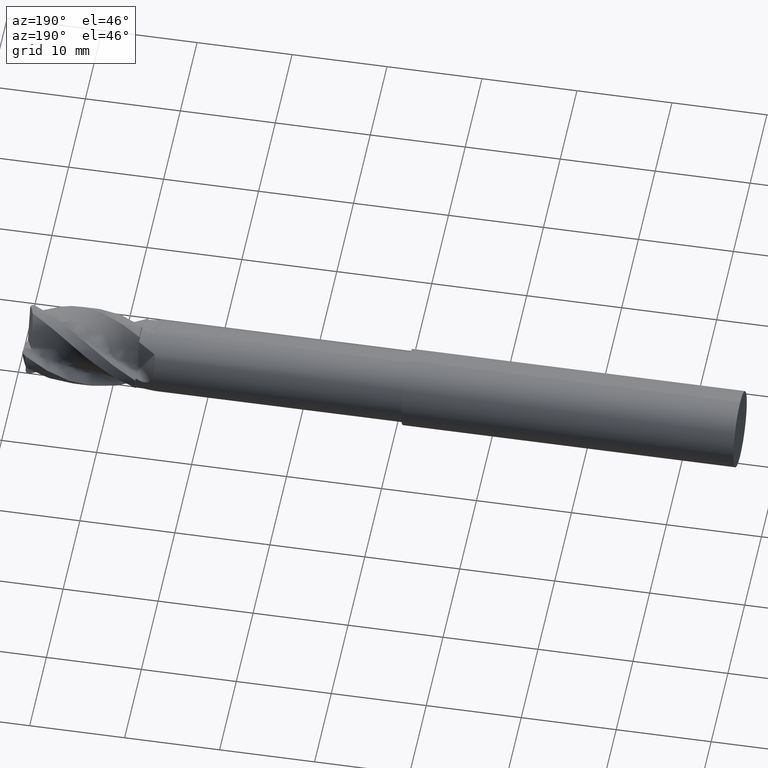
[diagram: clean part render]
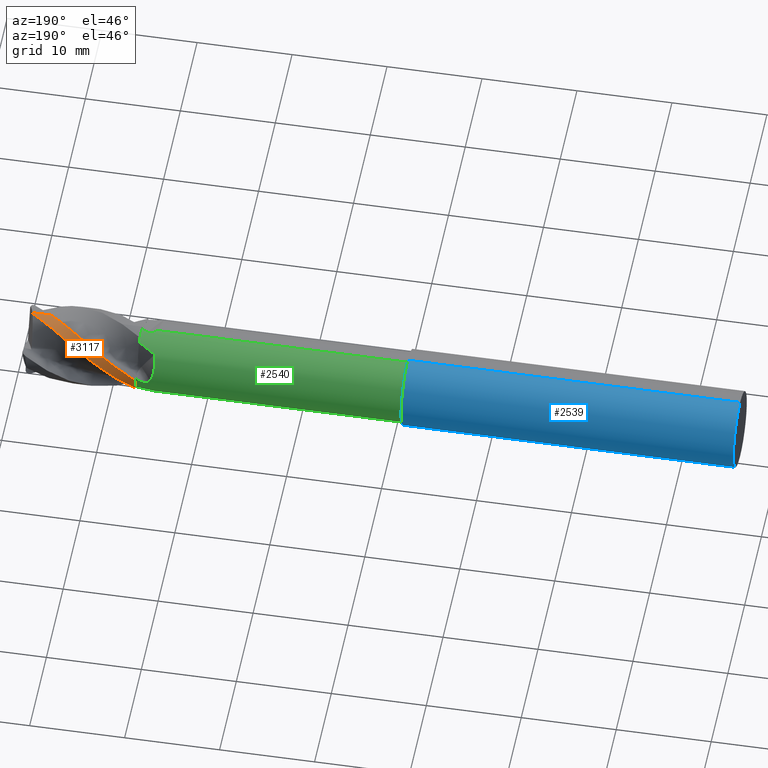
[diagram: same view with three faces highlighted in distinct colors, each labeled with its STEP entity id]
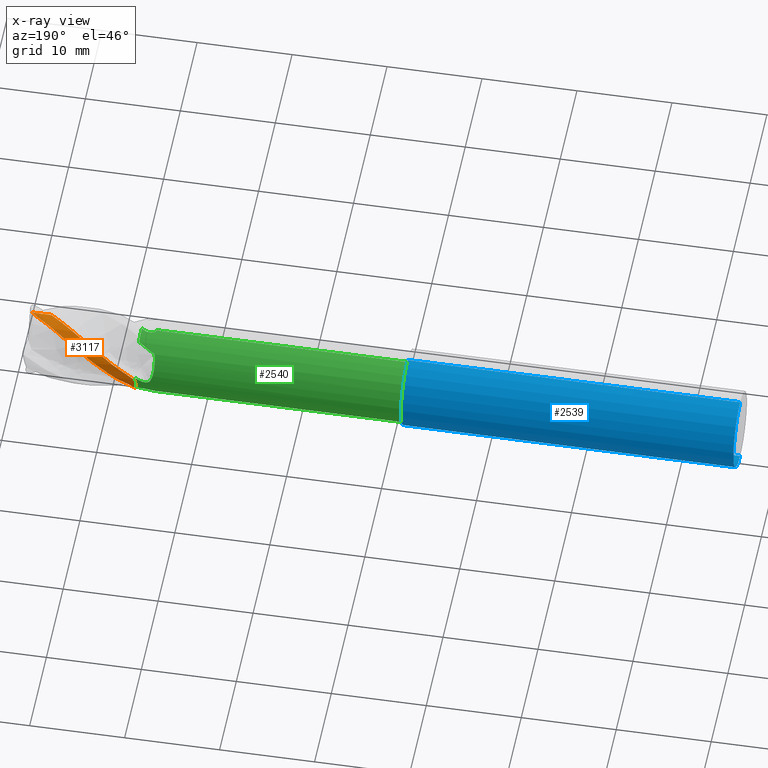
[diagram: x-ray of the same camera — body ghosted, the three highlighted faces saturated]
A machine part, auxiliary view with three faces highlighted in distinct colors.
The next image is the same camera in x-ray (body ghosted, the three faces saturated) — at least one of them is partly hidden behind the body in this view.
Their STEP definitions:

[orange] entity #3117 — the highlighted cylindrical surface (partial cylindrical patch) has radius 4 mm, axis along (-1, -0, -0).
#483 = CARTESIAN_POINT ( 'NONE',  ( 38.50000000000000700, 0.0000000000000000000, 0.0000000000000000000 ) ) ;
#490 = DIRECTION ( 'NONE',  ( -1.000000000000000000, -0.0000000000000000000, -0.0000000000000000000 ) ) ;
#491 = DIRECTION ( 'NONE',  ( 0.0000000000000000000, 0.0000000000000000000, 1.000000000000000000 ) ) ;
#547 = CARTESIAN_POINT ( 'NONE',  ( 38.48567934670139600, 0.09414185246420352100, 3.998892010496748900 ) ) ;
#573 = CARTESIAN_POINT ( 'NONE',  ( 38.00559130360257900, 0.4140447666225561300, 3.991360861151252800 ) ) ;
#574 = CARTESIAN_POINT ( 'NONE',  ( 37.53266347156454700, 0.7331616071895981100, 3.944325838363593300 ) ) ;
#575 = CARTESIAN_POINT ( 'NONE',  ( 36.81313672460179000, 1.180406947834665900, 3.824976797689579200 ) ) ;
#576 = CARTESIAN_POINT ( 'NONE',  ( 36.57358157214833500, 1.327293313961671200, 3.776647036325856600 ) ) ;
#577 = CARTESIAN_POINT ( 'NONE',  ( 36.09749928060109900, 1.619926416622682300, 3.660684196021862600 ) ) ;
#578 = CARTESIAN_POINT ( 'NONE',  ( 35.86013891459119700, 1.764430716850339500, 3.593356001540803000 ) ) ;
#579 = CARTESIAN_POINT ( 'NONE',  ( 35.38339540595956100, 2.044851559048323600, 3.441512052838394500 ) ) ;
#580 = CARTESIAN_POINT ( 'NONE',  ( 35.14317268861062600, 2.181169390574174900, 3.356678525724636300 ) ) ;
#581 = CARTESIAN_POINT ( 'NONE',  ( 34.66176384183881300, 2.438267193022670900, 3.174845465667263800 ) ) ;
#582 = CARTESIAN_POINT ( 'NONE',  ( 34.41990841466083100, 2.558059957634096500, 3.079090926841602900 ) ) ;
#583 = CARTESIAN_POINT ( 'NONE',  ( 33.70338541200364800, 2.907045204919394400, 2.765316420772081500 ) ) ;
#584 = CARTESIAN_POINT ( 'NONE',  ( 33.23401114042145100, 3.119660286000826200, 2.523228365190041800 ) ) ;
#585 = CARTESIAN_POINT ( 'NONE',  ( 32.52174950534472900, 3.386725922770071200, 2.134204288435136700 ) ) ;
#586 = CARTESIAN_POINT ( 'NONE',  ( 32.28199999599925000, 3.466572420717944200, 2.001700199903828200 ) ) ;
#587 = CARTESIAN_POINT ( 'NONE',  ( 31.80054149940246000, 3.610806587115343200, 1.728005737496766300 ) ) ;
#588 = CARTESIAN_POINT ( 'NONE',  ( 31.56025842214519600, 3.676427205639966700, 1.584076570372819000 ) ) ;
#589 = CARTESIAN_POINT ( 'NONE',  ( 30.83935072650840000, 3.848038137870327000, 1.137657596199427100 ) ) ;
#590 = CARTESIAN_POINT ( 'NONE',  ( 30.36388831825619800, 3.926712410134578900, 0.8237999664188890800 ) ) ;
#591 = CARTESIAN_POINT ( 'NONE',  ( 29.63851399327659700, 3.986941134022843800, 0.3587890438417942800 ) ) ;
#592 = CARTESIAN_POINT ( 'NONE',  ( 29.39593121485380300, 3.998061906556083400, 0.2021825344926493600 ) ) ;
#593 = CARTESIAN_POINT ( 'NONE',  ( 28.91711411922279100, 4.001478175817136500, -0.1164010067305726300 ) ) ;
#594 = CARTESIAN_POINT ( 'NONE',  ( 28.67945847078294700, 3.993600892265876600, -0.2770819810175179100 ) ) ;
#595 = CARTESIAN_POINT ( 'NONE',  ( 28.20381593543932300, 3.958689736700554500, -0.5953134295924116200 ) ) ;
#596 = CARTESIAN_POINT ( 'NONE',  ( 27.96581156015814800, 3.931656356976639600, -0.7528370308245080400 ) ) ;
#597 = CARTESIAN_POINT ( 'NONE',  ( 27.48549131894491300, 3.860493171067920700, -1.058904046868001300 ) ) ;
#598 = CARTESIAN_POINT ( 'NONE',  ( 27.24202060399090900, 3.817166122528646600, -1.205778247843740700 ) ) ;
#599 = CARTESIAN_POINT ( 'NONE',  ( 26.99999999999999600, 3.764029381150209000, -1.353544538549845700 ) ) ;
#646 = CARTESIAN_POINT ( 'NONE',  ( 27.00000000000000700, 4.000000000000016900, 6.528634695000778900E-014 ) ) ;
#655 = CARTESIAN_POINT ( 'NONE',  ( 27.80179895424213800, 4.000000000000009800, 0.5284084301337594900 ) ) ;
#656 = CARTESIAN_POINT ( 'NONE',  ( 28.59039152108571400, 3.895572225386986000, 1.047970300721944100 ) ) ;
#657 = CARTESIAN_POINT ( 'NONE',  ( 29.78145856890209600, 3.595138319216870700, 1.772966904456770900 ) ) ;
#658 = CARTESIAN_POINT ( 'NONE',  ( 30.18145041930334200, 3.470316380852865200, 2.006574554760242700 ) ) ;
#659 = CARTESIAN_POINT ( 'NONE',  ( 30.98104053800244600, 3.177092107542180500, 2.444488283305973600 ) ) ;
#660 = CARTESIAN_POINT ( 'NONE',  ( 31.37757775119679600, 3.010075009070739800, 2.647152866417817700 ) ) ;
#661 = CARTESIAN_POINT ( 'NONE',  ( 32.56447811573217200, 2.456460378112168600, 3.199637767690235900 ) ) ;
#662 = CARTESIAN_POINT ( 'NONE',  ( 33.35224758934677400, 2.016799543525378300, 3.494498686742028700 ) ) ;
#663 = CARTESIAN_POINT ( 'NONE',  ( 34.95549563518467600, 1.040578819360027600, 3.898230007465596400 ) ) ;
#664 = CARTESIAN_POINT ( 'NONE',  ( 35.74266999407494400, 0.5214560866848027000, 4.000000000000019500 ) ) ;
#665 = CARTESIAN_POINT ( 'NONE',  ( 36.53402038125327100, -1.775381057445013500E-015, 4.000000000000019500 ) ) ;
#698 = CARTESIAN_POINT ( 'NONE',  ( -39.76065438357068200, 0.0000000000000000000, 4.000000000000017800 ) ) ;
#699 = DIRECTION ( 'NONE',  ( -1.000000000000000000, -0.0000000000000000000, -0.0000000000000000000 ) ) ;
#798 = CARTESIAN_POINT ( 'NONE',  ( 38.48567934670139600, 0.09414185246420352100, 3.998892010496748900 ) ) ;
#806 = CARTESIAN_POINT ( 'NONE',  ( 38.49043943118900300, 0.07749973025267779800, 3.999283799074640800 ) ) ;
#807 = CARTESIAN_POINT ( 'NONE',  ( 38.49521304429534000, 0.06085548658207058600, 3.999571692504461300 ) ) ;
#808 = CARTESIAN_POINT ( 'NONE',  ( 38.50000000000000700, 0.04420977005336189400, 3.999755679567437800 ) ) ;
#2076 =( BOUNDED_CURVE ( )  B_SPLINE_CURVE ( 3, ( #798, #806, #807, #808 ),
 .UNSPECIFIED., .F., .T. ) 
 B_SPLINE_CURVE_WITH_KNOTS ( ( 4, 4 ),
 ( 1.140973089443403600, 1.153458058340469000 ),
 .UNSPECIFIED. ) 
 CURVE ( )  GEOMETRIC_REPRESENTATION_ITEM ( )  RATIONAL_B_SPLINE_CURVE ( ( 1.000000000000000000, 0.9999870105048185300, 0.9999870105048185300, 1.000000000000000000 ) ) 
 REPRESENTATION_ITEM ( '' )  );
#2121 = EDGE_LOOP ( 'NONE', ( #3985, #4173, #4043, #4034, #3899, #4164 ) ) ;
#2259 = AXIS2_PLACEMENT_3D ( 'NONE', #4791, #4790, #4789 ) ;
#2301 = EDGE_CURVE ( 'NONE', #3310, #3348, #3951, .T. ) ;
#2382 = AXIS2_PLACEMENT_3D ( 'NONE', #483, #490, #491 ) ;
#2416 = EDGE_CURVE ( 'NONE', #3167, #3377, #4216, .T. ) ;
#2437 = EDGE_CURVE ( 'NONE', #3402, #3348, #2455, .T. ) ;
#2450 = EDGE_CURVE ( 'NONE', #3310, #3181, #2527, .T. ) ;
#2455 = B_SPLINE_CURVE_WITH_KNOTS ( 'NONE', 3,
 ( #547, #573, #574, #575, #576, #577, #578, #579, #580, #581, #582, #583, #584, #585, #586, #587, #588, #589, #590, #591, #592, #593, #594, #595, #596, #597, #598, #599 ),
 .UNSPECIFIED., .F., .F.,
 ( 4, 2, 2, 2, 2, 2, 2, 2, 2, 2, 2, 2, 2, 4 ),
 ( 1.700687218890052200E-005, 0.001727685240855739900, 0.002583024425189168300, 0.003438363609522596700, 0.004293702793856026000, 0.005149041978189454000, 0.006859720346856310700, 0.007715059531189739600, 0.008570398715523168400, 0.01028107708419002400, 0.01113641626852345500, 0.01199175545285688400, 0.01284709463719031300, 0.01370243382152374100 ),
 .UNSPECIFIED. ) ;
#2465 = EDGE_CURVE ( 'NONE', #3167, #3181, #4241, .T. ) ;
#2491 = AXIS2_PLACEMENT_3D ( 'NONE', #3588, #3584, #3583 ) ;
#2503 = EDGE_CURVE ( 'NONE', #3402, #3377, #2076, .T. ) ;
#2527 = B_SPLINE_CURVE_WITH_KNOTS ( 'NONE', 3,
 ( #646, #655, #656, #657, #658, #659, #660, #661, #662, #663, #664, #665 ),
 .UNSPECIFIED., .F., .F.,
 ( 4, 2, 2, 2, 2, 4 ),
 ( 0.0000000000000000000, 0.002847188399908919800, 0.004270782599863379300, 0.005694376799817839700, 0.008541565199726760400, 0.01138875359963568100 ),
 .UNSPECIFIED. ) ;
#3117 = ADVANCED_FACE ( 'NONE', ( #4232 ), #4288, .T. ) ;
#3167 = VERTEX_POINT ( 'NONE', #4848 ) ;
#3181 = VERTEX_POINT ( 'NONE', #4852 ) ;
#3310 = VERTEX_POINT ( 'NONE', #4890 ) ;
#3348 = VERTEX_POINT ( 'NONE', #4902 ) ;
#3377 = VERTEX_POINT ( 'NONE', #4917 ) ;
#3402 = VERTEX_POINT ( 'NONE', #4925 ) ;
#3583 = DIRECTION ( 'NONE',  ( 0.0000000000000000000, 0.0000000000000000000, 1.000000000000000000 ) ) ;
#3584 = DIRECTION ( 'NONE',  ( -1.000000000000000000, -0.0000000000000000000, -0.0000000000000000000 ) ) ;
#3588 = CARTESIAN_POINT ( 'NONE',  ( 26.99999999999999600, 0.0000000000000000000, 0.0000000000000000000 ) ) ;
#3899 = ORIENTED_EDGE ( 'NONE', *, *, #2301, .F. ) ;
#3951 = CIRCLE ( 'NONE', #2491, 4.000000000000016900 ) ;
#3985 = ORIENTED_EDGE ( 'NONE', *, *, #2465, .F. ) ;
#4034 = ORIENTED_EDGE ( 'NONE', *, *, #2437, .T. ) ;
#4043 = ORIENTED_EDGE ( 'NONE', *, *, #2503, .F. ) ;
#4164 = ORIENTED_EDGE ( 'NONE', *, *, #2450, .T. ) ;
#4173 = ORIENTED_EDGE ( 'NONE', *, *, #2416, .T. ) ;
#4216 = CIRCLE ( 'NONE', #2382, 4.000000000000019500 ) ;
#4232 = FACE_OUTER_BOUND ( 'NONE', #2121, .T. ) ;
#4241 = LINE ( 'NONE', #698, #4245 ) ;
#4245 = VECTOR ( 'NONE', #699, 1000.000000000000000 ) ;
#4288 = CYLINDRICAL_SURFACE ( 'NONE', #2259, 4.000000000000017800 ) ;
#4789 = DIRECTION ( 'NONE',  ( 0.0000000000000000000, 0.0000000000000000000, 1.000000000000000000 ) ) ;
#4790 = DIRECTION ( 'NONE',  ( -1.000000000000000000, -0.0000000000000000000, -0.0000000000000000000 ) ) ;
#4791 = CARTESIAN_POINT ( 'NONE',  ( -39.76065438357068200, 0.0000000000000000000, 0.0000000000000000000 ) ) ;
#4848 = CARTESIAN_POINT ( 'NONE',  ( 38.50000000000000700, 0.0000000000000000000, 4.000000000000019500 ) ) ;
#4852 = CARTESIAN_POINT ( 'NONE',  ( 36.53402038125327100, -1.775381057445013500E-015, 4.000000000000019500 ) ) ;
#4890 = CARTESIAN_POINT ( 'NONE',  ( 27.00000000000000700, 4.000000000000016900, 6.528634695000778900E-014 ) ) ;
#4902 = CARTESIAN_POINT ( 'NONE',  ( 26.99999999999999600, 3.764029381150209000, -1.353544538549845700 ) ) ;
#4917 = CARTESIAN_POINT ( 'NONE',  ( 38.50000000000000700, 0.04420977005336189400, 3.999755679567437800 ) ) ;
#4925 = CARTESIAN_POINT ( 'NONE',  ( 38.48567934670139600, 0.09414185246420352100, 3.998892010496748900 ) ) ;

[blue] entity #2539 — the highlighted cylindrical surface (partial cylindrical patch) has radius 4 mm, axis along (-1, -0, -0).
#407 = CARTESIAN_POINT ( 'NONE',  ( -39.76065438357068200, 4.898587196589421700E-016, -4.000000000000007100 ) ) ;
#408 = DIRECTION ( 'NONE',  ( -1.000000000000000000, -0.0000000000000000000, -0.0000000000000000000 ) ) ;
#880 = DIRECTION ( 'NONE',  ( 0.0000000000000000000, 0.0000000000000000000, 1.000000000000000000 ) ) ;
#881 = DIRECTION ( 'NONE',  ( -1.000000000000000000, -0.0000000000000000000, -0.0000000000000000000 ) ) ;
#882 = CARTESIAN_POINT ( 'NONE',  ( -39.76065438357068200, 0.0000000000000000000, 0.0000000000000000000 ) ) ;
#2099 = EDGE_LOOP ( 'NONE', ( #4020, #3943, #4048, #3989 ) ) ;
#2282 = EDGE_CURVE ( 'NONE', #3378, #3179, #4025, .T. ) ;
#2290 = EDGE_CURVE ( 'NONE', #3378, #3142, #4064, .T. ) ;
#2323 = EDGE_CURVE ( 'NONE', #3142, #3151, #4087, .T. ) ;
#2346 = AXIS2_PLACEMENT_3D ( 'NONE', #882, #881, #880 ) ;
#2398 = EDGE_CURVE ( 'NONE', #3179, #3151, #4208, .T. ) ;
#2423 = AXIS2_PLACEMENT_3D ( 'NONE', #3475, #3463, #3462 ) ;
#2529 = AXIS2_PLACEMENT_3D ( 'NONE', #2739, #3446, #3447 ) ;
#2539 = ADVANCED_FACE ( 'NONE', ( #4247 ), #4255, .T. ) ;
#2739 = CARTESIAN_POINT ( 'NONE',  ( -1.000000000000000900, 0.0000000000000000000, 0.0000000000000000000 ) ) ;
#3142 = VERTEX_POINT ( 'NONE', #4840 ) ;
#3151 = VERTEX_POINT ( 'NONE', #4826 ) ;
#3179 = VERTEX_POINT ( 'NONE', #4825 ) ;
#3378 = VERTEX_POINT ( 'NONE', #4918 ) ;
#3446 = DIRECTION ( 'NONE',  ( -1.000000000000000000, -0.0000000000000000000, -0.0000000000000000000 ) ) ;
#3447 = DIRECTION ( 'NONE',  ( 0.0000000000000000000, 0.0000000000000000000, 1.000000000000000000 ) ) ;
#3462 = DIRECTION ( 'NONE',  ( 0.0000000000000000000, 0.0000000000000000000, 1.000000000000000000 ) ) ;
#3463 = DIRECTION ( 'NONE',  ( -1.000000000000000000, -0.0000000000000000000, -0.0000000000000000000 ) ) ;
#3475 = CARTESIAN_POINT ( 'NONE',  ( -36.00000000000000000, 0.0000000000000000000, 0.0000000000000000000 ) ) ;
#3641 = CARTESIAN_POINT ( 'NONE',  ( -39.76065438357068200, 0.0000000000000000000, 4.000000000000007100 ) ) ;
#3642 = DIRECTION ( 'NONE',  ( -1.000000000000000000, -0.0000000000000000000, -0.0000000000000000000 ) ) ;
#3943 = ORIENTED_EDGE ( 'NONE', *, *, #2398, .T. ) ;
#3975 = VECTOR ( 'NONE', #3642, 1000.000000000000000 ) ;
#3989 = ORIENTED_EDGE ( 'NONE', *, *, #2290, .F. ) ;
#4020 = ORIENTED_EDGE ( 'NONE', *, *, #2282, .T. ) ;
#4025 = CIRCLE ( 'NONE', #2529, 4.000000000000009800 ) ;
#4048 = ORIENTED_EDGE ( 'NONE', *, *, #2323, .F. ) ;
#4064 = LINE ( 'NONE', #3641, #3975 ) ;
#4087 = CIRCLE ( 'NONE', #2423, 4.000000000000005300 ) ;
#4208 = LINE ( 'NONE', #407, #4209 ) ;
#4209 = VECTOR ( 'NONE', #408, 1000.000000000000000 ) ;
#4247 = FACE_OUTER_BOUND ( 'NONE', #2099, .T. ) ;
#4255 = CYLINDRICAL_SURFACE ( 'NONE', #2346, 4.000000000000007100 ) ;
#4825 = CARTESIAN_POINT ( 'NONE',  ( -1.000000000000000900, 4.898587196589423700E-016, -4.000000000000009800 ) ) ;
#4826 = CARTESIAN_POINT ( 'NONE',  ( -36.00000000000000000, 4.898587196589420700E-016, -4.000000000000005300 ) ) ;
#4840 = CARTESIAN_POINT ( 'NONE',  ( -36.00000000000000000, 0.0000000000000000000, 4.000000000000005300 ) ) ;
#4918 = CARTESIAN_POINT ( 'NONE',  ( -1.000000000000000900, 0.0000000000000000000, 4.000000000000009800 ) ) ;

[green] entity #2540 — the highlighted cylindrical surface (edge-blend (fillet) strip) has radius 3.7 mm, axis along (-1, -0, -0).
#282 = CARTESIAN_POINT ( 'NONE',  ( -39.76065438357068200, 0.0000000000000000000, 3.700000000000014800 ) ) ;
#283 = DIRECTION ( 'NONE',  ( -1.000000000000000000, -0.0000000000000000000, -0.0000000000000000000 ) ) ;
#739 = CARTESIAN_POINT ( 'NONE',  ( -1.000000000000000900, 0.0000000000000000000, 0.0000000000000000000 ) ) ;
#757 = DIRECTION ( 'NONE',  ( -1.000000000000000000, -0.0000000000000000000, -0.0000000000000000000 ) ) ;
#758 = DIRECTION ( 'NONE',  ( 0.0000000000000000000, 0.0000000000000000000, 1.000000000000000000 ) ) ;
#792 = CARTESIAN_POINT ( 'NONE',  ( 27.00000000000000400, 3.703097500000016100, 5.979800356926025000E-014 ) ) ;
#799 = CARTESIAN_POINT ( 'NONE',  ( 26.92666304994857600, 3.700000000000111200, -0.04470616497924432400 ) ) ;
#800 = CARTESIAN_POINT ( 'NONE',  ( 26.85333461257581400, 3.699189426480264100, -0.08943365034624083100 ) ) ;
#801 = CARTESIAN_POINT ( 'NONE',  ( 26.78001231970053200, 3.697567842515351500, -0.1341344474640475100 ) ) ;
#802 = CARTESIAN_POINT ( 'NONE',  ( 26.70666387504135700, 3.695945680181818000, -0.1788511879674222200 ) ) ;
#803 = CARTESIAN_POINT ( 'NONE',  ( 26.63331502169120000, 3.693511842287834600, -0.2235451785502457200 ) ) ;
#804 = CARTESIAN_POINT ( 'NONE',  ( 26.55996628855678000, 3.690268709489205300, -0.2681731749541545500 ) ) ;
#849 = CARTESIAN_POINT ( 'NONE',  ( 27.00000000000000400, 3.322555954394311100, -1.628073072681334400 ) ) ;
#854 = CARTESIAN_POINT ( 'NONE',  ( 26.40344870968110100, 3.163093870822364800, -1.953501767573303300 ) ) ;
#855 = CARTESIAN_POINT ( 'NONE',  ( 25.81576643485497200, 2.950731893212446900, -2.260304291445689500 ) ) ;
#856 = CARTESIAN_POINT ( 'NONE',  ( 25.20922698849330200, 2.717297123222168300, -2.519999999999960000 ) ) ;
#857 = CARTESIAN_POINT ( 'NONE',  ( 25.46471813796138100, 3.699393050599729900, -0.06701535029033538200 ) ) ;
#863 = CARTESIAN_POINT ( 'NONE',  ( 25.35786553042390800, 3.703808832588926200, 0.1767454169521451800 ) ) ;
#864 = CARTESIAN_POINT ( 'NONE',  ( 25.27574136361482700, 3.684403960825505900, 0.4254498334900783100 ) ) ;
#865 = CARTESIAN_POINT ( 'NONE',  ( 25.18493089446242200, 3.613906462566919500, 0.8038284062273459700 ) ) ;
#866 = CARTESIAN_POINT ( 'NONE',  ( 25.16001825143510800, 3.583149968616344200, 0.9317208311147675600 ) ) ;
#867 = CARTESIAN_POINT ( 'NONE',  ( 25.12176003811780600, 3.508513003253720200, 1.182118399623345800 ) ) ;
#868 = CARTESIAN_POINT ( 'NONE',  ( 25.10820219763377600, 3.464628864667505900, 1.305184017781060100 ) ) ;
#869 = CARTESIAN_POINT ( 'NONE',  ( 25.08258182262458300, 3.313169851963980900, 1.667794799329357600 ) ) ;
#870 = CARTESIAN_POINT ( 'NONE',  ( 25.08588533639132100, 3.183727309892719700, 1.903338666046769300 ) ) ;
#871 = CARTESIAN_POINT ( 'NONE',  ( 25.12643909359693600, 2.883334399907349100, 2.333495318130371500 ) ) ;
#872 = CARTESIAN_POINT ( 'NONE',  ( 25.16344879689393500, 2.711117259333260000, 2.531397248011261400 ) ) ;
#873 = CARTESIAN_POINT ( 'NONE',  ( 25.20922698849329500, 2.519999999999931200, 2.717297123222197200 ) ) ;
#883 = DIRECTION ( 'NONE',  ( 0.0000000000000000000, 0.0000000000000000000, 1.000000000000000000 ) ) ;
#884 = DIRECTION ( 'NONE',  ( -1.000000000000000000, -0.0000000000000000000, -0.0000000000000000000 ) ) ;
#885 = CARTESIAN_POINT ( 'NONE',  ( -39.76065438357068200, 0.0000000000000000000, 0.0000000000000000000 ) ) ;
#1798 = CARTESIAN_POINT ( 'NONE',  ( 27.00000000000000000, 1.628073072628516900, 3.322555954420126000 ) ) ;
#1802 = CARTESIAN_POINT ( 'NONE',  ( 26.40344870966377000, 1.953501767515120700, 3.163093870857297800 ) ) ;
#1803 = CARTESIAN_POINT ( 'NONE',  ( 25.81576643486093700, 2.260304291437876100, 2.950731893219710900 ) ) ;
#1805 = CARTESIAN_POINT ( 'NONE',  ( 25.20922698849329500, 2.519999999999931200, 2.717297123222197200 ) ) ;
#1822 = CARTESIAN_POINT ( 'NONE',  ( 26.55996628855678000, 3.690268709489205300, -0.2681731749541545500 ) ) ;
#1854 = CARTESIAN_POINT ( 'NONE',  ( 26.46978374214741700, 3.686281277336426900, -0.3230433017187754900 ) ) ;
#1855 = CARTESIAN_POINT ( 'NONE',  ( 26.37364473975279100, 3.682245147491801900, -0.3628776794039290100 ) ) ;
#1856 = CARTESIAN_POINT ( 'NONE',  ( 26.16915243940476200, 3.677074770696180800, -0.4119838190343452200 ) ) ;
#1857 = CARTESIAN_POINT ( 'NONE',  ( 26.06450642367146700, 3.676080008403276100, -0.4202139896174078600 ) ) ;
#1859 = CARTESIAN_POINT ( 'NONE',  ( 25.85646227966325100, 3.678728583689214700, -0.3963584650292758500 ) ) ;
#1860 = CARTESIAN_POINT ( 'NONE',  ( 25.75275116088195300, 3.682617302000098700, -0.3629142229116287300 ) ) ;
#1861 = CARTESIAN_POINT ( 'NONE',  ( 25.57769162514182400, 3.692197838942224800, -0.2470871188313928700 ) ) ;
#1863 = CARTESIAN_POINT ( 'NONE',  ( 25.50742081325314100, 3.697628326406221500, -0.1644319628933481300 ) ) ;
#1864 = CARTESIAN_POINT ( 'NONE',  ( 25.46471813796138100, 3.699393050599729900, -0.06701535029033538200 ) ) ;
#1971 = CARTESIAN_POINT ( 'NONE',  ( 27.00000000000000400, -2.083646289008767100E-014, 3.703097500000016100 ) ) ;
#2010 = CARTESIAN_POINT ( 'NONE',  ( 26.55996628855678300, 0.2681731749541883000, 3.690268709489196400 ) ) ;
#2011 = CARTESIAN_POINT ( 'NONE',  ( 26.63331502169119600, 0.2235451785502717600, 3.693511842287819500 ) ) ;
#2012 = CARTESIAN_POINT ( 'NONE',  ( 26.70666387504134700, 0.1788511879674588300, 3.695945680181815800 ) ) ;
#2013 = CARTESIAN_POINT ( 'NONE',  ( 26.78001231970051100, 0.1341344474640929200, 3.697567842515349800 ) ) ;
#2016 = CARTESIAN_POINT ( 'NONE',  ( 26.85333461257578600, 0.08943365034629551000, 3.699189426480262300 ) ) ;
#2017 = CARTESIAN_POINT ( 'NONE',  ( 26.92666304994858700, 0.04470616497939234500, 3.699999999999997100 ) ) ;
#2031 = CARTESIAN_POINT ( 'NONE',  ( 26.99999999999999600, 0.0000000000000000000, 0.0000000000000000000 ) ) ;
#2055 = DIRECTION ( 'NONE',  ( -1.000000000000000000, -0.0000000000000000000, -0.0000000000000000000 ) ) ;
#2056 = DIRECTION ( 'NONE',  ( 0.0000000000000000000, 0.0000000000000000000, 1.000000000000000000 ) ) ;
#2102 = EDGE_LOOP ( 'NONE', ( #4021, #4041, #4121, #3941, #3872, #3939, #4119, #4159, #3983, #3954, #3870, #4005, #3927, #4089 ) ) ;
#2210 = B_SPLINE_CURVE_WITH_KNOTS ( 'NONE', 3,
 ( #1822, #1854, #1855, #1856, #1857, #1859, #1860, #1861, #1863, #1864 ),
 .UNSPECIFIED., .F., .F.,
 ( 4, 2, 2, 2, 4 ),
 ( 3.668706899837488100E-018, 0.0003123865255148845400, 0.0006247730510297653900, 0.0009371595765446462400, 0.001249546102059527100 ),
 .UNSPECIFIED. ) ;
#2220 = B_SPLINE_CURVE_WITH_KNOTS ( 'NONE', 3,
 ( #3576, #3542, #3547, #3545, #3544, #3548, #3550, #3549, #3541, #3595, #3597, #3539 ),
 .UNSPECIFIED., .F., .F.,
 ( 4, 2, 2, 2, 2, 4 ),
 ( 7.201534003833545500E-005, 0.0008413132181562102200, 0.001225962157215147900, 0.001610611096274085800, 0.002379908974391961700, 0.003149206852509838200 ),
 .UNSPECIFIED. ) ;
#2222 = B_SPLINE_CURVE_WITH_KNOTS ( 'NONE', 3,
 ( #3621, #3601, #3603, #3600, #3599, #3598, #3596, #3591, #3590, #3592 ),
 .UNSPECIFIED., .F., .F.,
 ( 4, 2, 2, 2, 4 ),
 ( 3.697243390723172500E-016, 0.0003123865255152518700, 0.0006247730510301340200, 0.0009371595765450161700, 0.001249546102059898300 ),
 .UNSPECIFIED. ) ;
#2226 = B_SPLINE_CURVE_WITH_KNOTS ( 'NONE', 3,
 ( #1971, #2017, #2016, #2013, #2012, #2011, #2010 ),
 .UNSPECIFIED., .F., .F.,
 ( 4, 3, 4 ),
 ( 0.0000000000000000000, 0.0002576675083709244000, 0.0005154269323145568600 ),
 .UNSPECIFIED. ) ;
#2227 = B_SPLINE_CURVE_WITH_KNOTS ( 'NONE', 3,
 ( #3489, #3480, #3478, #3477 ),
 .UNSPECIFIED., .F., .F.,
 ( 4, 4 ),
 ( 0.0000000000000000000, 7.201534003833679700E-005 ),
 .UNSPECIFIED. ) ;
#2229 = B_SPLINE_CURVE_WITH_KNOTS ( 'NONE', 3,
 ( #1798, #1802, #1803, #1805 ),
 .UNSPECIFIED., .F., .F.,
 ( 4, 4 ),
 ( 0.0000000000000000000, 0.002087939045386941200 ),
 .UNSPECIFIED. ) ;
#2296 = EDGE_CURVE ( 'NONE', #3382, #3336, #2222, .T. ) ;
#2304 = EDGE_CURVE ( 'NONE', #3269, #3360, #2220, .T. ) ;
#2314 = EDGE_CURVE ( 'NONE', #3158, #3254, #4113, .T. ) ;
#2320 = EDGE_CURVE ( 'NONE', #3336, #3195, #2227, .T. ) ;
#2321 = EDGE_CURVE ( 'NONE', #3269, #3263, #3961, .T. ) ;
#2333 = EDGE_CURVE ( 'NONE', #3219, #3382, #2226, .T. ) ;
#2342 = AXIS2_PLACEMENT_3D ( 'NONE', #885, #884, #883 ) ;
#2347 = EDGE_CURVE ( 'NONE', #3359, #3298, #2229, .T. ) ;
#2357 = EDGE_CURVE ( 'NONE', #3157, #3280, #2210, .T. ) ;
#2370 = EDGE_CURVE ( 'NONE', #3219, #3359, #4007, .T. ) ;
#2373 = EDGE_CURVE ( 'NONE', #3195, #3249, #4006, .T. ) ;
#2410 = AXIS2_PLACEMENT_3D ( 'NONE', #2031, #2055, #2056 ) ;
#2440 = AXIS2_PLACEMENT_3D ( 'NONE', #739, #757, #758 ) ;
#2485 = EDGE_CURVE ( 'NONE', #3249, #3263, #4252, .T. ) ;
#2497 = AXIS2_PLACEMENT_3D ( 'NONE', #3515, #3514, #3513 ) ;
#2499 = EDGE_CURVE ( 'NONE', #3158, #3157, #2510, .T. ) ;
#2510 = B_SPLINE_CURVE_WITH_KNOTS ( 'NONE', 3,
 ( #792, #799, #800, #801, #802, #803, #804 ),
 .UNSPECIFIED., .F., .F.,
 ( 4, 3, 4 ),
 ( 0.0000000000000000000, 0.0002576675083709657600, 0.0005154269323146380700 ),
 .UNSPECIFIED. ) ;
#2516 = B_SPLINE_CURVE_WITH_KNOTS ( 'NONE', 3,
 ( #849, #854, #855, #856 ),
 .UNSPECIFIED., .F., .F.,
 ( 4, 4 ),
 ( 0.0000000000000000000, 0.002087939045356754800 ),
 .UNSPECIFIED. ) ;
#2519 = B_SPLINE_CURVE_WITH_KNOTS ( 'NONE', 3,
 ( #857, #863, #864, #865, #866, #867, #868, #869, #870, #871, #872, #873 ),
 .UNSPECIFIED., .F., .F.,
 ( 4, 2, 2, 2, 2, 4 ),
 ( 0.0000000000000000000, 0.0007873017131274467600, 0.001180952569691170200, 0.001574603426254893700, 0.002361905139382340800, 0.003149206852509788300 ),
 .UNSPECIFIED. ) ;
#2531 = EDGE_CURVE ( 'NONE', #3254, #3360, #2516, .T. ) ;
#2535 = EDGE_CURVE ( 'NONE', #3280, #3298, #2519, .T. ) ;
#2540 = ADVANCED_FACE ( 'NONE', ( #4256 ), #4262, .T. ) ;
#3157 = VERTEX_POINT ( 'NONE', #4843 ) ;
#3158 = VERTEX_POINT ( 'NONE', #4844 ) ;
#3195 = VERTEX_POINT ( 'NONE', #4865 ) ;
#3219 = VERTEX_POINT ( 'NONE', #4870 ) ;
#3249 = VERTEX_POINT ( 'NONE', #4876 ) ;
#3254 = VERTEX_POINT ( 'NONE', #4877 ) ;
#3263 = VERTEX_POINT ( 'NONE', #4832 ) ;
#3269 = VERTEX_POINT ( 'NONE', #4878 ) ;
#3280 = VERTEX_POINT ( 'NONE', #4881 ) ;
#3298 = VERTEX_POINT ( 'NONE', #4884 ) ;
#3336 = VERTEX_POINT ( 'NONE', #4896 ) ;
#3359 = VERTEX_POINT ( 'NONE', #4910 ) ;
#3360 = VERTEX_POINT ( 'NONE', #4911 ) ;
#3382 = VERTEX_POINT ( 'NONE', #4919 ) ;
#3476 = DIRECTION ( 'NONE',  ( -1.000000000000000000, -0.0000000000000000000, -0.0000000000000000000 ) ) ;
#3477 = CARTESIAN_POINT ( 'NONE',  ( 25.43601983507822700, 1.735211366954425600E-012, 3.700000000000013900 ) ) ;
#3478 = CARTESIAN_POINT ( 'NONE',  ( 25.44537926060219100, 0.02237940412284100700, 3.700000000000004600 ) ) ;
#3480 = CARTESIAN_POINT ( 'NONE',  ( 25.45494421427051500, 0.04471828901354223800, 3.699796966958838900 ) ) ;
#3486 = CARTESIAN_POINT ( 'NONE',  ( -39.76065438357068200, 4.531193156845224900E-016, -3.700000000000014800 ) ) ;
#3489 = CARTESIAN_POINT ( 'NONE',  ( 25.46471813796137700, 0.06701535029039328000, 3.699393050599728600 ) ) ;
#3513 = DIRECTION ( 'NONE',  ( 0.0000000000000000000, 0.0000000000000000000, 1.000000000000000000 ) ) ;
#3514 = DIRECTION ( 'NONE',  ( -1.000000000000000000, -0.0000000000000000000, -0.0000000000000000000 ) ) ;
#3515 = CARTESIAN_POINT ( 'NONE',  ( 26.99999999999999600, 0.0000000000000000000, 0.0000000000000000000 ) ) ;
#3539 = CARTESIAN_POINT ( 'NONE',  ( 25.20922698849330200, 2.717297123222168300, -2.519999999999960000 ) ) ;
#3541 = CARTESIAN_POINT ( 'NONE',  ( 25.08701965041880700, 1.923800203240351800, -3.170904587197781700 ) ) ;
#3542 = CARTESIAN_POINT ( 'NONE',  ( 25.33603855064426100, 0.2390661225039804900, -3.700000000000129000 ) ) ;
#3544 = CARTESIAN_POINT ( 'NONE',  ( 25.15199599673573500, 0.9779233650741951900, -3.570707808421882800 ) ) ;
#3545 = CARTESIAN_POINT ( 'NONE',  ( 25.17493160535023800, 0.8531496271291633100, -3.602499163765510800 ) ) ;
#3547 = CARTESIAN_POINT ( 'NONE',  ( 25.25928409141476300, 0.4827070080637355700, -3.677016724081242600 ) ) ;
#3548 = CARTESIAN_POINT ( 'NONE',  ( 25.11709600660922000, 1.221638579414037200, -3.494837269798166400 ) ) ;
#3549 = CARTESIAN_POINT ( 'NONE',  ( 25.08255118017202900, 1.694591703413008700, -3.299089446331234100 ) ) ;
#3550 = CARTESIAN_POINT ( 'NONE',  ( 25.10489160940763800, 1.341455220402118600, -3.450638483773485400 ) ) ;
#3576 = CARTESIAN_POINT ( 'NONE',  ( 25.43601983507822700, -1.736553067142876400E-012, -3.700000000000015700 ) ) ;
#3590 = CARTESIAN_POINT ( 'NONE',  ( 25.50742081325309100, 0.1644319628934146900, 3.697628326406219700 ) ) ;
#3591 = CARTESIAN_POINT ( 'NONE',  ( 25.57769162514178500, 0.2470871188314944000, 3.692197838942220800 ) ) ;
#3592 = CARTESIAN_POINT ( 'NONE',  ( 25.46471813796137700, 0.06701535029039328000, 3.699393050599728600 ) ) ;
#3595 = CARTESIAN_POINT ( 'NONE',  ( 25.12813936586130100, 2.342486591274809200, -2.875482514778567200 ) ) ;
#3596 = CARTESIAN_POINT ( 'NONE',  ( 25.75275116088194900, 0.3629142229117609500, 3.682617302000087600 ) ) ;
#3597 = CARTESIAN_POINT ( 'NONE',  ( 25.16461812758183200, 2.535462505715784700, -2.706746833679248200 ) ) ;
#3598 = CARTESIAN_POINT ( 'NONE',  ( 25.85646227966325100, 0.3963584650293836000, 3.678728583689201400 ) ) ;
#3599 = CARTESIAN_POINT ( 'NONE',  ( 26.06450642367146000, 0.4202139896174754100, 3.676080008403267700 ) ) ;
#3600 = CARTESIAN_POINT ( 'NONE',  ( 26.16915243940477300, 0.4119838190343959000, 3.677074770696177300 ) ) ;
#3601 = CARTESIAN_POINT ( 'NONE',  ( 26.46978374214774400, 0.3230433017186031800, 3.686281277336280300 ) ) ;
#3603 = CARTESIAN_POINT ( 'NONE',  ( 26.37364473975279800, 0.3628776794039644800, 3.682245147491799700 ) ) ;
#3621 = CARTESIAN_POINT ( 'NONE',  ( 26.55996628855678300, 0.2681731749541883000, 3.690268709489196400 ) ) ;
#3870 = ORIENTED_EDGE ( 'NONE', *, *, #2357, .F. ) ;
#3872 = ORIENTED_EDGE ( 'NONE', *, *, #2320, .F. ) ;
#3927 = ORIENTED_EDGE ( 'NONE', *, *, #2314, .T. ) ;
#3939 = ORIENTED_EDGE ( 'NONE', *, *, #2296, .F. ) ;
#3941 = ORIENTED_EDGE ( 'NONE', *, *, #2373, .F. ) ;
#3954 = ORIENTED_EDGE ( 'NONE', *, *, #2535, .F. ) ;
#3961 = LINE ( 'NONE', #3486, #4001 ) ;
#3983 = ORIENTED_EDGE ( 'NONE', *, *, #2347, .T. ) ;
#4001 = VECTOR ( 'NONE', #3476, 1000.000000000000000 ) ;
#4002 = VECTOR ( 'NONE', #283, 1000.000000000000000 ) ;
#4005 = ORIENTED_EDGE ( 'NONE', *, *, #2499, .F. ) ;
#4006 = LINE ( 'NONE', #282, #4002 ) ;
#4007 = CIRCLE ( 'NONE', #2410, 3.700000000000016600 ) ;
#4021 = ORIENTED_EDGE ( 'NONE', *, *, #2304, .F. ) ;
#4041 = ORIENTED_EDGE ( 'NONE', *, *, #2321, .T. ) ;
#4089 = ORIENTED_EDGE ( 'NONE', *, *, #2531, .T. ) ;
#4113 = CIRCLE ( 'NONE', #2497, 3.700000000000016600 ) ;
#4119 = ORIENTED_EDGE ( 'NONE', *, *, #2333, .F. ) ;
#4121 = ORIENTED_EDGE ( 'NONE', *, *, #2485, .F. ) ;
#4159 = ORIENTED_EDGE ( 'NONE', *, *, #2370, .T. ) ;
#4252 = CIRCLE ( 'NONE', #2440, 3.700000000000013100 ) ;
#4256 = FACE_OUTER_BOUND ( 'NONE', #2102, .T. ) ;
#4262 = CYLINDRICAL_SURFACE ( 'NONE', #2342, 3.700000000000014800 ) ;
#4832 = CARTESIAN_POINT ( 'NONE',  ( -1.000000000000000900, 4.531193156845224000E-016, -3.700000000000013100 ) ) ;
#4843 = CARTESIAN_POINT ( 'NONE',  ( 26.55996628855678000, 3.690268709489205300, -0.2681731749541545500 ) ) ;
#4844 = CARTESIAN_POINT ( 'NONE',  ( 27.00000000000000400, 3.703097500000016100, 5.979800356926025000E-014 ) ) ;
#4865 = CARTESIAN_POINT ( 'NONE',  ( 25.43601983507822700, 1.735211366954425600E-012, 3.700000000000013900 ) ) ;
#4870 = CARTESIAN_POINT ( 'NONE',  ( 27.00000000000000400, -2.083646289008767100E-014, 3.703097500000016100 ) ) ;
#4876 = CARTESIAN_POINT ( 'NONE',  ( -1.000000000000000900, 0.0000000000000000000, 3.700000000000013100 ) ) ;
#4877 = CARTESIAN_POINT ( 'NONE',  ( 27.00000000000000400, 3.322555954394311100, -1.628073072681334400 ) ) ;
#4878 = CARTESIAN_POINT ( 'NONE',  ( 25.43601983507822700, -1.736553067142876400E-012, -3.700000000000015700 ) ) ;
#4881 = CARTESIAN_POINT ( 'NONE',  ( 25.46471813796138100, 3.699393050599729900, -0.06701535029033538200 ) ) ;
#4884 = CARTESIAN_POINT ( 'NONE',  ( 25.20922698849329500, 2.519999999999931200, 2.717297123222197200 ) ) ;
#4896 = CARTESIAN_POINT ( 'NONE',  ( 25.46471813796137700, 0.06701535029039328000, 3.699393050599728600 ) ) ;
#4910 = CARTESIAN_POINT ( 'NONE',  ( 27.00000000000000000, 1.628073072628516900, 3.322555954420126000 ) ) ;
#4911 = CARTESIAN_POINT ( 'NONE',  ( 25.20922698849330200, 2.717297123222168300, -2.519999999999960000 ) ) ;
#4919 = CARTESIAN_POINT ( 'NONE',  ( 26.55996628855678300, 0.2681731749541883000, 3.690268709489196400 ) ) ;